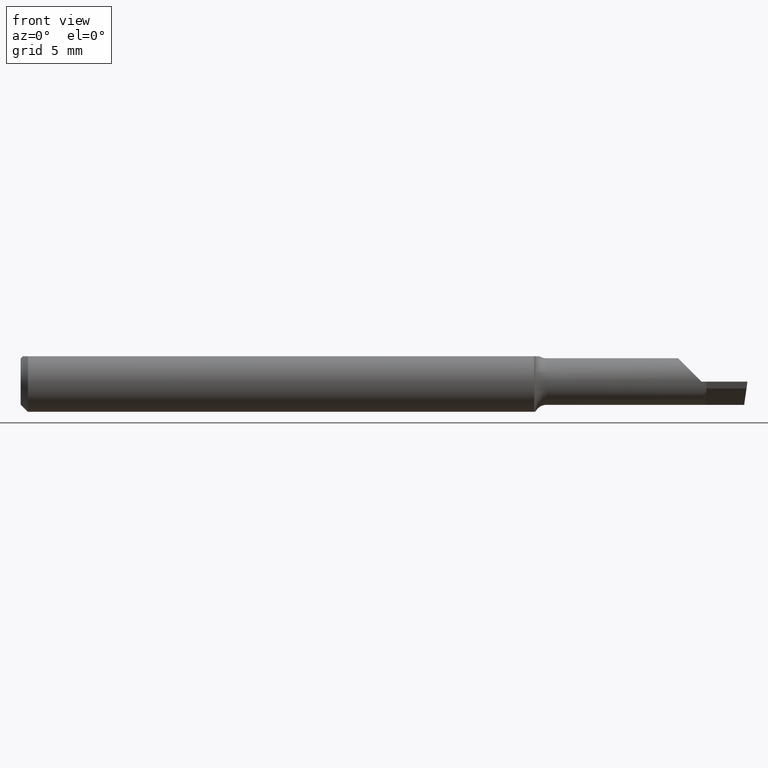
[diagram: clean part render]
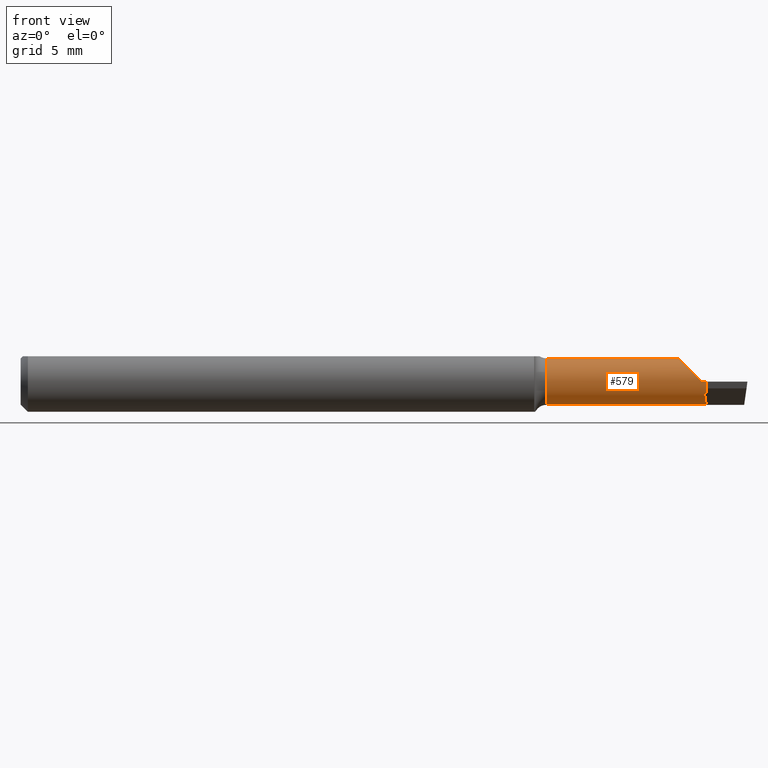
[diagram: same view with one face highlighted and labeled with its STEP entity id]
A machine part, front view. The second image highlights one B-rep face of the part: STEP entity #579.
In plain terms, the highlighted cylindrical surface (edge-blend (fillet) strip) has radius 1.2205 mm, axis along (-1, -0, -0).
Its self-contained STEP definition (entity closure, byte-faithful):
#10 = CARTESIAN_POINT ( 'NONE',  ( 2.249639673992802012E-32, -0.02965000000000000968, 1.836970198721035850E-16 ) ) ;
#16 = DIRECTION ( 'NONE',  ( -1.000000000000000000, -0.000000000000000000, -0.000000000000000000 ) ) ;
#19 = CARTESIAN_POINT ( 'NONE',  ( 1.411693566917664233, -0.02373862507460325691, -0.02308979811133086285 ) ) ;
#23 =( BOUNDED_CURVE ( )  B_SPLINE_CURVE ( 3, ( #159, #64, #292, #393 ),
 .UNSPECIFIED., .F., .T. ) 
 B_SPLINE_CURVE_WITH_KNOTS ( ( 4, 4 ),
 ( 0.000000000000000000, 1.570796326794896780 ),
 .UNSPECIFIED. ) 
 CURVE ( )  GEOMETRIC_REPRESENTATION_ITEM ( )  RATIONAL_B_SPLINE_CURVE ( ( 1.000000000000000000, 0.8047378541243649375, 0.8047378541243649375, 1.000000000000000000 ) ) 
 REPRESENTATION_ITEM ( '' )  );
#33 = EDGE_CURVE ( 'NONE', #678, #49, #138, .T. ) ;
#38 = DIRECTION ( 'NONE',  ( 0.000000000000000000, 0.000000000000000000, 1.000000000000000000 ) ) ;
#49 = VERTEX_POINT ( 'NONE', #132 ) ;
#53 = EDGE_CURVE ( 'NONE', #134, #338, #194, .T. ) ;
#58 = DIRECTION ( 'NONE',  ( 0.000000000000000000, 0.000000000000000000, 1.000000000000000000 ) ) ;
#60 = EDGE_CURVE ( 'NONE', #574, #678, #655, .T. ) ;
#64 = CARTESIAN_POINT ( 'NONE',  ( 1.356949999999999656, -0.009747038327972792557, 0.04805000000000002325 ) ) ;
#67 = CYLINDRICAL_SURFACE ( 'NONE', #118, 0.04805000000000001631 ) ;
#69 = VECTOR ( 'NONE', #713, 39.37007874015748143 ) ;
#71 = FACE_OUTER_BOUND ( 'NONE', #639, .T. ) ;
#85 = CARTESIAN_POINT ( 'NONE',  ( 1.415000000000000036, 0.01839999999999999275, -0.04805000000000000243 ) ) ;
#97 = ORIENTED_EDGE ( 'NONE', *, *, #417, .T. ) ;
#118 = AXIS2_PLACEMENT_3D ( 'NONE', #603, #16, #353 ) ;
#119 = CARTESIAN_POINT ( 'NONE',  ( 1.413967379733374274, -0.005732236225996134062, -0.04155064764002344702 ) ) ;
#131 = EDGE_CURVE ( 'NONE', #305, #272, #558, .T. ) ;
#132 = CARTESIAN_POINT ( 'NONE',  ( 1.415000000000000036, -0.02964999999999999927, 1.836970198721035850E-16 ) ) ;
#134 = VERTEX_POINT ( 'NONE', #85 ) ;
#138 = CIRCLE ( 'NONE', #530, 0.04805000000000000243 ) ;
#147 = CARTESIAN_POINT ( 'NONE',  ( 1.412831206499709724, -0.02360198871013168345, -0.02333915795875195556 ) ) ;
#154 = EDGE_CURVE ( 'NONE', #134, #440, #381, .T. ) ;
#159 = CARTESIAN_POINT ( 'NONE',  ( 1.356949999999999656, 0.01839999999999999969, 0.04805000000000001631 ) ) ;
#171 = CIRCLE ( 'NONE', #599, 0.04805000000000003713 ) ;
#182 = DIRECTION ( 'NONE',  ( 0.000000000000000000, 0.000000000000000000, 1.000000000000000000 ) ) ;
#194 = CIRCLE ( 'NONE', #732, 0.04805000000000000243 ) ;
#198 = CARTESIAN_POINT ( 'NONE',  ( 1.415000000000000036, -0.02332210298107671026, -0.02383419020727221144 ) ) ;
#249 = CARTESIAN_POINT ( 'NONE',  ( 1.415000000000000036, 0.01839999999999999969, 0.000000000000000000 ) ) ;
#272 = VERTEX_POINT ( 'NONE', #691 ) ;
#276 = CARTESIAN_POINT ( 'NONE',  ( 1.085000000000000187, 0.01839999999999999969, 0.000000000000000000 ) ) ;
#292 = CARTESIAN_POINT ( 'NONE',  ( 1.376852961672026865, -0.02965000000000002703, 0.02814703832797277663 ) ) ;
#305 = VERTEX_POINT ( 'NONE', #329 ) ;
#313 = EDGE_CURVE ( 'NONE', #338, #315, #546, .T. ) ;
#315 = VERTEX_POINT ( 'NONE', #642 ) ;
#320 = DIRECTION ( 'NONE',  ( -1.000000000000000000, -0.000000000000000000, -0.000000000000000000 ) ) ;
#322 = ORIENTED_EDGE ( 'NONE', *, *, #131, .T. ) ;
#329 = CARTESIAN_POINT ( 'NONE',  ( 1.356949999999999656, 0.01839999999999999969, 0.04805000000000001631 ) ) ;
#335 = ORIENTED_EDGE ( 'NONE', *, *, #60, .T. ) ;
#338 = VERTEX_POINT ( 'NONE', #525 ) ;
#351 = CARTESIAN_POINT ( 'NONE',  ( 1.413438773033254048, -0.005613966577516781541, -0.04161888885126449611 ) ) ;
#353 = DIRECTION ( 'NONE',  ( 0.000000000000000000, 0.000000000000000000, 1.000000000000000000 ) ) ;
#381 = LINE ( 'NONE', #674, #756 ) ;
#382 = ORIENTED_EDGE ( 'NONE', *, *, #547, .F. ) ;
#393 = CARTESIAN_POINT ( 'NONE',  ( 1.405000000000000249, -0.02965000000000005131, 1.163414459189988826E-17 ) ) ;
#394 = CARTESIAN_POINT ( 'NONE',  ( 1.415000000000000036, -0.005967897507307238537, -0.04141265592875408019 ) ) ;
#395 = CARTESIAN_POINT ( 'NONE',  ( 1.405000000000000249, -0.02965000000000005131, 1.163414459189988826E-17 ) ) ;
#417 = EDGE_CURVE ( 'NONE', #315, #574, #622, .T. ) ;
#428 = VECTOR ( 'NONE', #746, 39.37007874015748143 ) ;
#434 = ORIENTED_EDGE ( 'NONE', *, *, #645, .F. ) ;
#438 = DIRECTION ( 'NONE',  ( -1.000000000000000000, -0.000000000000000000, -0.000000000000000000 ) ) ;
#440 = VERTEX_POINT ( 'NONE', #698 ) ;
#500 = CARTESIAN_POINT ( 'NONE',  ( 0.000000000000000000, 0.01839999999999999969, 0.04805000000000001631 ) ) ;
#513 = DIRECTION ( 'NONE',  ( -1.000000000000000000, -0.000000000000000000, -0.000000000000000000 ) ) ;
#525 = CARTESIAN_POINT ( 'NONE',  ( 1.415000000000000036, -0.005967897507307238537, -0.04141265592875408019 ) ) ;
#529 = DIRECTION ( 'NONE',  ( -1.000000000000000000, -0.000000000000000000, -0.000000000000000000 ) ) ;
#530 = AXIS2_PLACEMENT_3D ( 'NONE', #249, #529, #182 ) ;
#546 =( BOUNDED_CURVE ( )  B_SPLINE_CURVE ( 3, ( #394, #757, #119, #634 ),
 .UNSPECIFIED., .F., .T. ) 
 B_SPLINE_CURVE_WITH_KNOTS ( ( 4, 4 ),
 ( 3.401551700436511005, 3.410076864869624469 ),
 .UNSPECIFIED. ) 
 CURVE ( )  GEOMETRIC_REPRESENTATION_ITEM ( )  RATIONAL_B_SPLINE_CURVE ( ( 1.000000000000000000, 0.9999939434734527177, 0.9999939434734527177, 1.000000000000000000 ) ) 
 REPRESENTATION_ITEM ( '' )  );
#547 = EDGE_CURVE ( 'NONE', #305, #682, #23, .T. ) ;
#558 = LINE ( 'NONE', #500, #428 ) ;
#574 = VERTEX_POINT ( 'NONE', #19 ) ;
#579 = ADVANCED_FACE ( 'NONE', ( #71 ), #67, .T. ) ;
#596 = CARTESIAN_POINT ( 'NONE',  ( 1.411693566917664233, -0.02373862507460325691, -0.02308979811133086285 ) ) ;
#599 = AXIS2_PLACEMENT_3D ( 'NONE', #276, #513, #58 ) ;
#603 = CARTESIAN_POINT ( 'NONE',  ( 0.000000000000000000, 0.01839999999999999969, 0.000000000000000000 ) ) ;
#620 = ORIENTED_EDGE ( 'NONE', *, *, #33, .T. ) ;
#622 =( BOUNDED_CURVE ( )  B_SPLINE_CURVE ( 3, ( #351, #704, #647, #596 ),
 .UNSPECIFIED., .F., .T. ) 
 B_SPLINE_CURVE_WITH_KNOTS ( ( 4, 4 ),
 ( 5.235722629572546083, 5.781918477337279150 ),
 .UNSPECIFIED. ) 
 CURVE ( )  GEOMETRIC_REPRESENTATION_ITEM ( )  RATIONAL_B_SPLINE_CURVE ( ( 1.000000000000000000, 0.9752933061899736744, 0.9752933061899736744, 1.000000000000000000 ) ) 
 REPRESENTATION_ITEM ( '' )  );
#634 = CARTESIAN_POINT ( 'NONE',  ( 1.413438773033254048, -0.005613966577516781541, -0.04161888885126449611 ) ) ;
#639 = EDGE_LOOP ( 'NONE', ( #685, #654, #742, #97, #335, #620, #434, #382, #322, #644 ) ) ;
#642 = CARTESIAN_POINT ( 'NONE',  ( 1.413438773033254048, -0.005613966577516781541, -0.04161888885126449611 ) ) ;
#644 = ORIENTED_EDGE ( 'NONE', *, *, #712, .F. ) ;
#645 = EDGE_CURVE ( 'NONE', #682, #49, #716, .T. ) ;
#647 = CARTESIAN_POINT ( 'NONE',  ( 1.412103466032909926, -0.01948165999997935119, -0.03085871208668647045 ) ) ;
#654 = ORIENTED_EDGE ( 'NONE', *, *, #53, .T. ) ;
#655 =( BOUNDED_CURVE ( )  B_SPLINE_CURVE ( 3, ( #738, #147, #680, #198 ),
 .UNSPECIFIED., .F., .T. ) 
 B_SPLINE_CURVE_WITH_KNOTS ( ( 4, 4 ),
 ( 2.863881017104891402, 2.881633606743074338 ),
 .UNSPECIFIED. ) 
 CURVE ( )  GEOMETRIC_REPRESENTATION_ITEM ( )  RATIONAL_B_SPLINE_CURVE ( ( 1.000000000000000000, 0.9999737373025290310, 0.9999737373025290310, 1.000000000000000000 ) ) 
 REPRESENTATION_ITEM ( '' )  );
#674 = CARTESIAN_POINT ( 'NONE',  ( 0.000000000000000000, 0.01840000000000000663, -0.04805000000000001631 ) ) ;
#678 = VERTEX_POINT ( 'NONE', #737 ) ;
#680 = CARTESIAN_POINT ( 'NONE',  ( 1.413933379806532553, -0.02346314436586248789, -0.02358729517415169424 ) ) ;
#682 = VERTEX_POINT ( 'NONE', #395 ) ;
#685 = ORIENTED_EDGE ( 'NONE', *, *, #154, .F. ) ;
#691 = CARTESIAN_POINT ( 'NONE',  ( 1.085000000000000187, 0.01839999999999999969, 0.04805000000000003713 ) ) ;
#698 = CARTESIAN_POINT ( 'NONE',  ( 1.085000000000000187, 0.01840000000000001010, -0.04805000000000003713 ) ) ;
#704 = CARTESIAN_POINT ( 'NONE',  ( 1.412699938261490873, -0.01328705905889041028, -0.03719153887917837908 ) ) ;
#712 = EDGE_CURVE ( 'NONE', #440, #272, #171, .T. ) ;
#713 = DIRECTION ( 'NONE',  ( 1.000000000000000000, 0.000000000000000000, 0.000000000000000000 ) ) ;
#716 = LINE ( 'NONE', #10, #69 ) ;
#726 = CARTESIAN_POINT ( 'NONE',  ( 1.415000000000000036, 0.01839999999999999969, 0.000000000000000000 ) ) ;
#732 = AXIS2_PLACEMENT_3D ( 'NONE', #726, #320, #38 ) ;
#737 = CARTESIAN_POINT ( 'NONE',  ( 1.415000000000000036, -0.02332210298107671026, -0.02383419020727221144 ) ) ;
#738 = CARTESIAN_POINT ( 'NONE',  ( 1.411693566917664233, -0.02373862507460325691, -0.02308979811133086285 ) ) ;
#742 = ORIENTED_EDGE ( 'NONE', *, *, #313, .T. ) ;
#746 = DIRECTION ( 'NONE',  ( -1.000000000000000000, -0.000000000000000000, -0.000000000000000000 ) ) ;
#756 = VECTOR ( 'NONE', #438, 39.37007874015748143 ) ;
#757 = CARTESIAN_POINT ( 'NONE',  ( 1.414487791874180056, -0.005850213917127972466, -0.04148190291616571379 ) ) ;